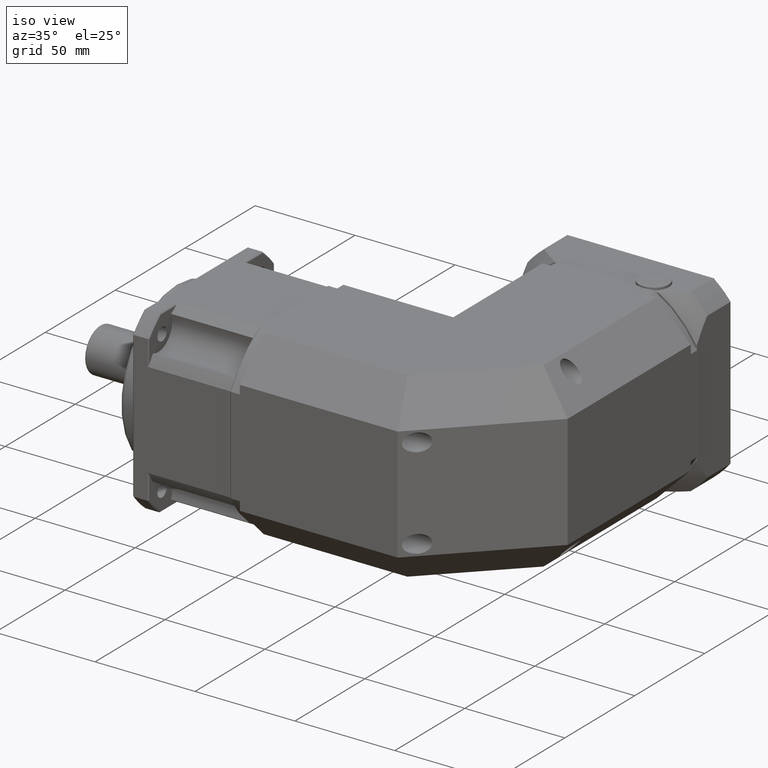
[diagram: clean part render]
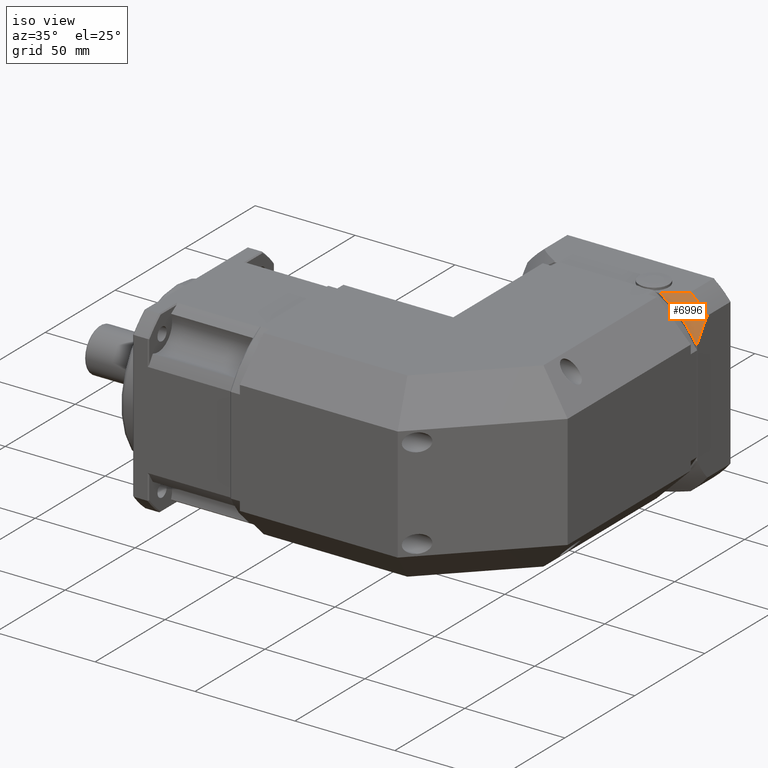
[diagram: same view with one face highlighted and labeled with its STEP entity id]
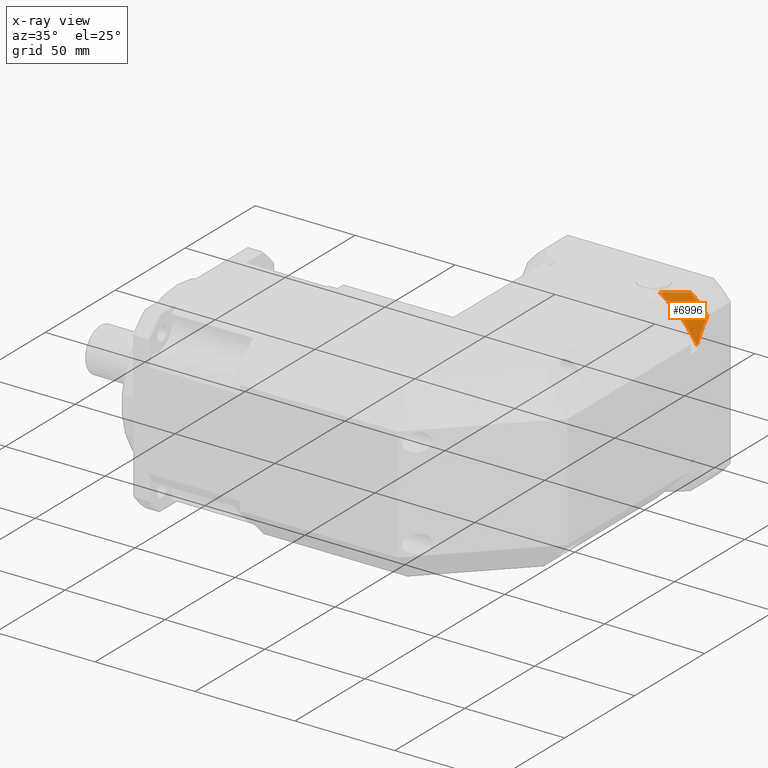
[diagram: x-ray of the same camera — body ghosted, the highlighted face saturated]
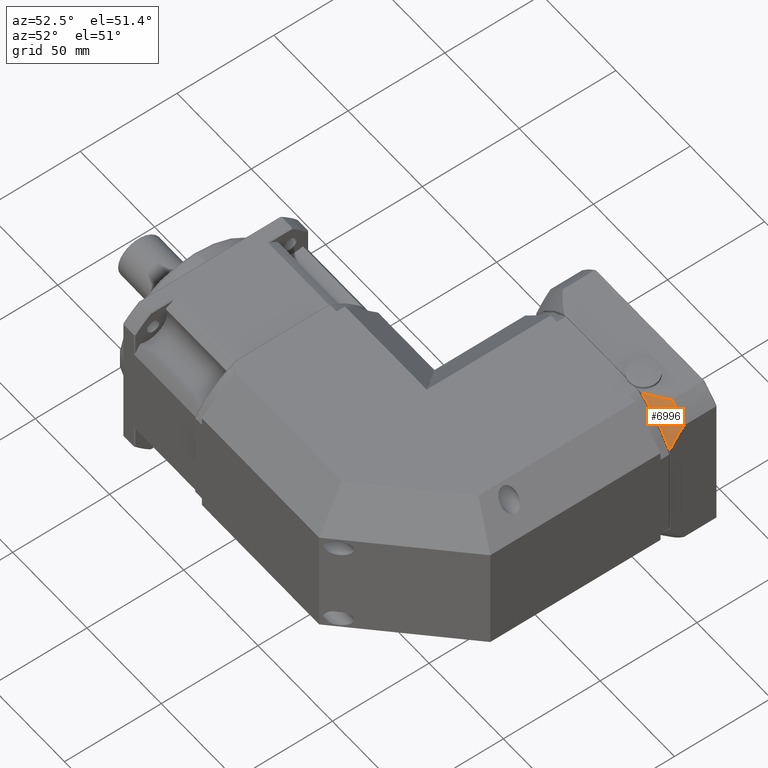
[diagram: same view with one face highlighted and labeled with its STEP entity id]
A machine part, iso view. The second image highlights one B-rep face of the part: STEP entity #6996.
The next image is the same camera in x-ray: the body ghosted, the highlighted face saturated — about 0% of this face is hidden behind the body in this view.
A second angle (auxiliary view) of the same face is appended — the face is thin or edge-on in the first view.
In plain terms, the highlighted spherical surface has radius 71 mm.
Its self-contained STEP definition (entity closure, byte-faithful):
#14=SPHERICAL_SURFACE('',#7604,71.);
#30=B_SPLINE_CURVE_WITH_KNOTS('',3,(#11053,#11054,#11055,#11056,#11057,
#11058,#11059,#11060,#11061,#11062),.UNSPECIFIED.,.F.,.F.,(4,2,2,2,4),(0.00186571685972297,
0.010117239498402,0.020234478996804,0.0404689579936081,0.0570529004931106),
 .UNSPECIFIED.);
#35=B_SPLINE_CURVE_WITH_KNOTS('',3,(#11109,#11110,#11111,#11112,#11113,
#11114,#11115,#11116,#11117,#11118),.UNSPECIFIED.,.F.,.F.,(4,2,2,2,4),(0.507369781107797,
0.523953723607688,0.544188202604492,0.554305442102893,0.562556964741602),
 .UNSPECIFIED.);
#1524=FACE_OUTER_BOUND('',#2059,.T.);
#2059=EDGE_LOOP('',(#4913,#4914,#4915,#4916,#4917,#4918));
#2626=CIRCLE('',#7568,54.9181208709839);
#2628=CIRCLE('',#7571,58.);
#2629=CIRCLE('',#7573,54.9181208709839);
#2648=CIRCLE('',#7596,52.0019543805172);
#3070=VERTEX_POINT('',#10963);
#3071=VERTEX_POINT('',#10965);
#3073=VERTEX_POINT('',#10971);
#3074=VERTEX_POINT('',#10975);
#3095=VERTEX_POINT('',#11042);
#3096=VERTEX_POINT('',#11074);
#3756=EDGE_CURVE('',#3070,#3071,#2626,.T.);
#3760=EDGE_CURVE('',#3073,#3070,#2628,.T.);
#3762=EDGE_CURVE('',#3074,#3073,#2629,.T.);
#3787=EDGE_CURVE('',#3095,#3074,#30,.T.);
#3790=EDGE_CURVE('',#3096,#3095,#2648,.T.);
#3794=EDGE_CURVE('',#3071,#3096,#35,.T.);
#4913=ORIENTED_EDGE('',*,*,#3787,.F.);
#4914=ORIENTED_EDGE('',*,*,#3790,.F.);
#4915=ORIENTED_EDGE('',*,*,#3794,.F.);
#4916=ORIENTED_EDGE('',*,*,#3756,.F.);
#4917=ORIENTED_EDGE('',*,*,#3760,.F.);
#4918=ORIENTED_EDGE('',*,*,#3762,.F.);
#6996=ADVANCED_FACE('',(#1524),#14,.T.);
#7568=AXIS2_PLACEMENT_3D('',#10966,#8706,#8707);
#7571=AXIS2_PLACEMENT_3D('',#10973,#8714,#8715);
#7573=AXIS2_PLACEMENT_3D('',#10977,#8719,#8720);
#7596=AXIS2_PLACEMENT_3D('',#11085,#8768,#8769);
#7604=AXIS2_PLACEMENT_3D('',#11202,#8789,#8790);
#8706=DIRECTION('center_axis',(1.,-2.75472102774943E-15,-5.9317182724313E-15));
#8707=DIRECTION('ref_axis',(5.9317182724313E-15,2.67480246924957E-16,1.));
#8714=DIRECTION('center_axis',(2.75472102774942E-15,1.,-2.67480246924973E-16));
#8715=DIRECTION('ref_axis',(-5.73434529027572E-15,-2.67480246924957E-16,
-1.));
#8719=DIRECTION('center_axis',(5.9317182724313E-15,2.67480246924957E-16,
1.));
#8720=DIRECTION('ref_axis',(-1.,2.75472102774943E-15,5.9317182724313E-15));
#8768=DIRECTION('center_axis',(-2.75472102774942E-15,-1.,2.67480246924973E-16));
#8769=DIRECTION('ref_axis',(0.707106781186551,-1.7587448225647E-15,0.707106781186544));
#8789=DIRECTION('center_axis',(-5.80443361606842E-15,0.,-1.));
#8790=DIRECTION('ref_axis',(2.80214036637786E-15,1.,-2.68955436951446E-16));
#10963=CARTESIAN_POINT('',(119.575498960853,216.740280641517,40.0984505067622));
#10965=CARTESIAN_POINT('',(119.575498960853,209.691471100403,30.1894297079509));
#10966=CARTESIAN_POINT('Origin',(119.575498960853,257.691471100403,3.50610157969818));
#10971=CARTESIAN_POINT('',(111.167847887917,216.740280641517,48.5061015796982));
#10973=CARTESIAN_POINT('Origin',(74.5754989608527,216.740280641517,3.50610157969845));
#10975=CARTESIAN_POINT('',(101.258827089106,209.691471100403,48.5061015796983));
#10977=CARTESIAN_POINT('Origin',(74.5754989608531,257.691471100403,48.5061015796984));
#11042=CARTESIAN_POINT('',(100.86668331439,209.351045568488,48.3723125260408));
#11053=CARTESIAN_POINT('Ctrl Pts',(100.866683314392,209.351045568489,48.3723125260401));
#11054=CARTESIAN_POINT('Ctrl Pts',(100.87156301613,209.370386322362,48.3902914709368));
#11055=CARTESIAN_POINT('Ctrl Pts',(100.881128345523,209.389639347578,48.4054068411036));
#11056=CARTESIAN_POINT('Ctrl Pts',(100.909500110723,209.432253142298,48.4345927539291));
#11057=CARTESIAN_POINT('Ctrl Pts',(100.929862174003,209.455535655922,48.4476553175856));
#11058=CARTESIAN_POINT('Ctrl Pts',(100.999948276666,209.523929793966,48.4798846832969));
#11059=CARTESIAN_POINT('Ctrl Pts',(101.058407758495,209.567265076761,48.4918869510576));
#11060=CARTESIAN_POINT('Ctrl Pts',(101.160283661047,209.634652938528,48.5038182601914));
#11061=CARTESIAN_POINT('Ctrl Pts',(101.208698484404,209.663604475239,48.5061015796983));
#11062=CARTESIAN_POINT('Ctrl Pts',(101.258827089106,209.691471100403,48.5061015796983));
#11074=CARTESIAN_POINT('',(119.441709907195,209.351045568488,29.7972859332369));
#11085=CARTESIAN_POINT('Origin',(74.5754989608527,209.351045568489,3.50610157969846));
#11109=CARTESIAN_POINT('Ctrl Pts',(119.575498960853,209.691471100403,30.1894297079509));
#11110=CARTESIAN_POINT('Ctrl Pts',(119.575498960853,209.663604475239,30.1393011032475));
#11111=CARTESIAN_POINT('Ctrl Pts',(119.573215641346,209.634652938528,30.0908862798936));
#11112=CARTESIAN_POINT('Ctrl Pts',(119.561284332212,209.567265076761,29.9890103773402));
#11113=CARTESIAN_POINT('Ctrl Pts',(119.549282064451,209.523929793966,29.9305508955114));
#11114=CARTESIAN_POINT('Ctrl Pts',(119.51705269874,209.455535655922,29.8604647928481));
#11115=CARTESIAN_POINT('Ctrl Pts',(119.503990135084,209.432253142298,29.8401027295685));
#11116=CARTESIAN_POINT('Ctrl Pts',(119.474804222258,209.389639347578,29.8117309643678));
#11117=CARTESIAN_POINT('Ctrl Pts',(119.459688852091,209.370386322361,29.8021656349757));
#11118=CARTESIAN_POINT('Ctrl Pts',(119.441709907194,209.351045568488,29.7972859332371));
#11202=CARTESIAN_POINT('Origin',(74.5754989608528,257.691471100403,3.50610157969844));